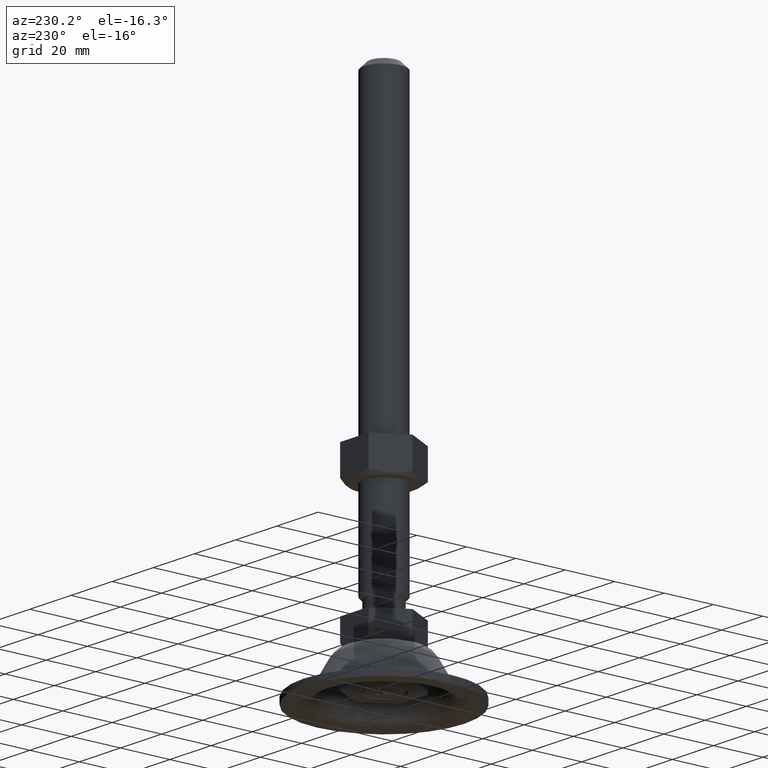
[diagram: clean part render]
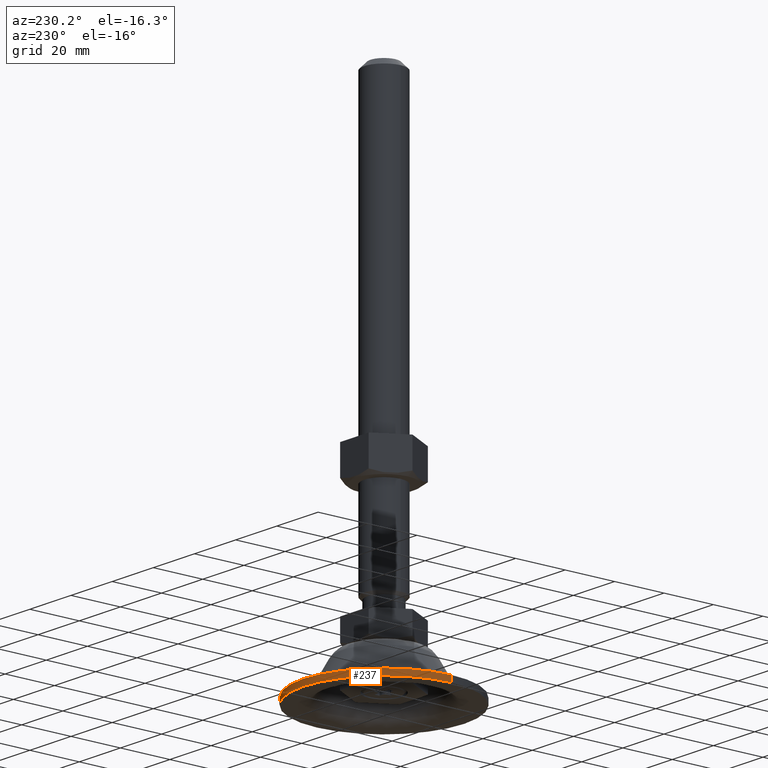
[diagram: same view with one face highlighted and labeled with its STEP entity id]
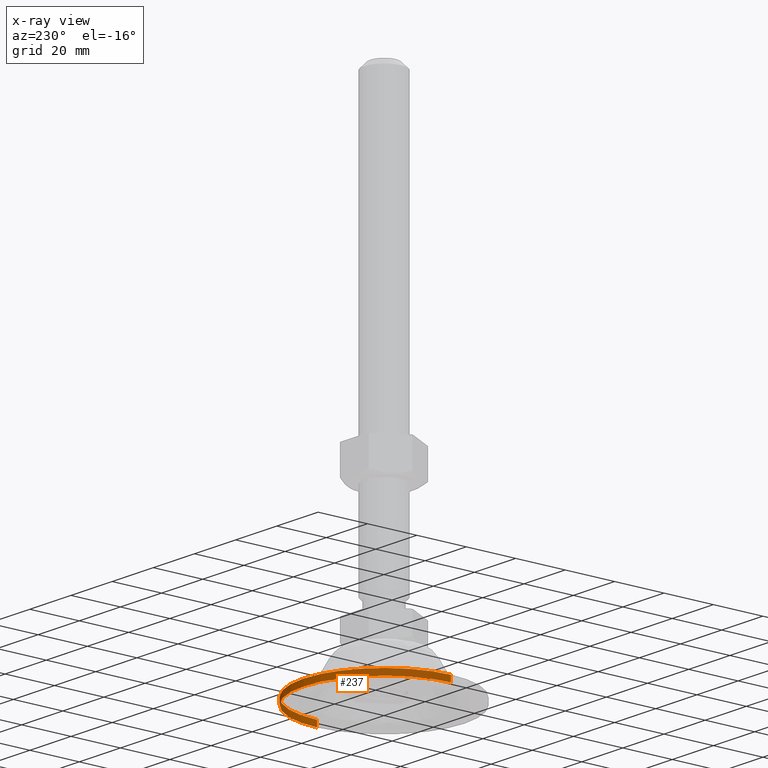
[diagram: x-ray of the same camera — body ghosted, the highlighted face saturated]
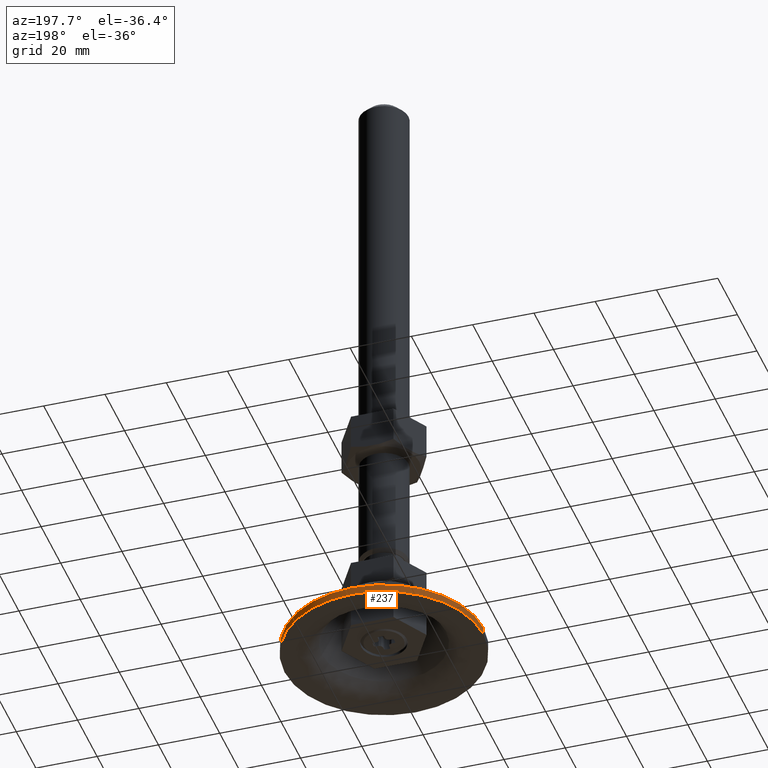
[diagram: same view with one face highlighted and labeled with its STEP entity id]
A machine part, auxiliary view. The second image highlights one B-rep face of the part: STEP entity #237.
The next image is the same camera in x-ray: the body ghosted, the highlighted face saturated — about 0% of this face is hidden behind the body in this view.
A second angle (auxiliary view) of the same face is appended — the face is thin or edge-on in the first view.
In plain terms, the highlighted cylindrical surface (partial cylindrical patch) has radius 32.5 mm, axis along (0, 0, 1).
Its self-contained STEP definition (entity closure, byte-faithful):
#237=ADVANCED_FACE('',(#1132),#1131,.T.);
#1131=CYLINDRICAL_SURFACE('',#1870,3.25000000000E+01);
#1132=FACE_OUTER_BOUND('',#1871,.T.);
#1867=CARTESIAN_POINT('',(-3.19460013998E-11,0.00000000000E+00,0.00000000000E+00));
#1868=DIRECTION('',(0.00000000000E+00,-0.00000000000E+00,1.00000000000E+00));
#1869=DIRECTION('',(1.00000000000E+00,-0.00000000000E+00,-0.00000000000E+00));
#1870=AXIS2_PLACEMENT_3D('',#1867,#1868,#1869);
#1871=EDGE_LOOP('',(#2285,#2286,#2287,#2288));
#2285=ORIENTED_EDGE('',*,*,#2474,.T.);
#2286=ORIENTED_EDGE('',*,*,#2499,.F.);
#2287=ORIENTED_EDGE('',*,*,#2461,.F.);
#2288=ORIENTED_EDGE('',*,*,#2500,.T.);
#2461=EDGE_CURVE('',#3617,#3618,#3619,.T.);
#2474=EDGE_CURVE('',#3702,#3701,#3709,.T.);
#2499=EDGE_CURVE('',#3618,#3701,#3869,.T.);
#2500=EDGE_CURVE('',#3617,#3702,#3875,.T.);
#3617=VERTEX_POINT('',#4677);
#3618=VERTEX_POINT('',#4678);
#3619=CIRCLE('',#4682,3.25000000000E+01);
#3701=VERTEX_POINT('',#4737);
#3702=VERTEX_POINT('',#4738);
#3709=CIRCLE('',#4746,3.25000000000E+01);
#3869=(BOUNDED_CURVE() B_SPLINE_CURVE(1,(#4837,#4838),.UNSPECIFIED.,.F.,.F.) B_SPLINE_CURVE_WITH_KNOTS((2,2),(8.33333233997E-02,9.16666663280E-01),.UNSPECIFIED.) CURVE() GEOMETRIC_REPRESENTATION_ITEM() RATIONAL_B_SPLINE_CURVE((1.00000000000E+00,1.00000000000E+00)) REPRESENTATION_ITEM('') );
#3875=(BOUNDED_CURVE() B_SPLINE_CURVE(1,(#4839,#4840),.UNSPECIFIED.,.F.,.F.) B_SPLINE_CURVE_WITH_KNOTS((2,2),(8.33333333333E-02,9.16666666667E-01),.UNSPECIFIED.) CURVE() GEOMETRIC_REPRESENTATION_ITEM() RATIONAL_B_SPLINE_CURVE((7.50000000000E-01,7.50000000000E-01)) REPRESENTATION_ITEM('') );
#4677=CARTESIAN_POINT('',(-3.25000000001E+01,0.00000000000E+00,-2.79999999999E+01));
#4678=CARTESIAN_POINT('',(3.25000000000E+01,1.18423789293E-15,-2.79999999999E+01));
#4679=CARTESIAN_POINT('',(-3.19460013998E-11,0.00000000000E+00,-2.79999999999E+01));
#4680=DIRECTION('',(-0.00000000000E+00,0.00000000000E+00,-1.00000000000E+00));
#4681=DIRECTION('',(-1.00000000000E+00,-1.22460635382E-16,0.00000000000E+00));
#4682=AXIS2_PLACEMENT_3D('',#4679,#4680,#4681);
#4737=CARTESIAN_POINT('',(3.25000000000E+01,6.98700356831E-14,-2.55000000000E+01));
#4738=CARTESIAN_POINT('',(-3.25000000001E+01,0.00000000000E+00,-2.55000000000E+01));
#4743=CARTESIAN_POINT('',(-3.19460013998E-11,0.00000000000E+00,-2.55000000000E+01));
#4744=DIRECTION('',(-0.00000000000E+00,0.00000000000E+00,-1.00000000000E+00));
#4745=DIRECTION('',(-1.00000000000E+00,-1.22460635382E-16,0.00000000000E+00));
#4746=AXIS2_PLACEMENT_3D('',#4743,#4744,#4745);
#4837=CARTESIAN_POINT('',(3.25000000000E+01,0.00000000000E+00,-2.80000000297E+01));
#4838=CARTESIAN_POINT('',(3.25000000000E+01,0.00000000000E+00,-2.55000000101E+01));
#4839=CARTESIAN_POINT('',(-3.25000000001E+01,-2.36847578587E-15,-2.79999999999E+01));
#4840=CARTESIAN_POINT('',(-3.25000000001E+01,-2.36847578587E-15,-2.55000000000E+01));